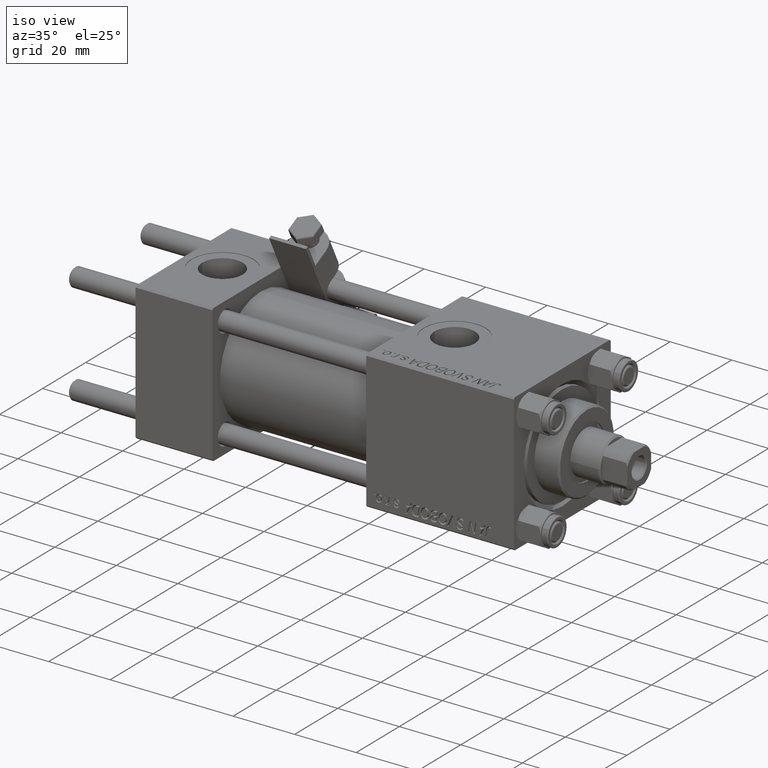
[diagram: clean part render]
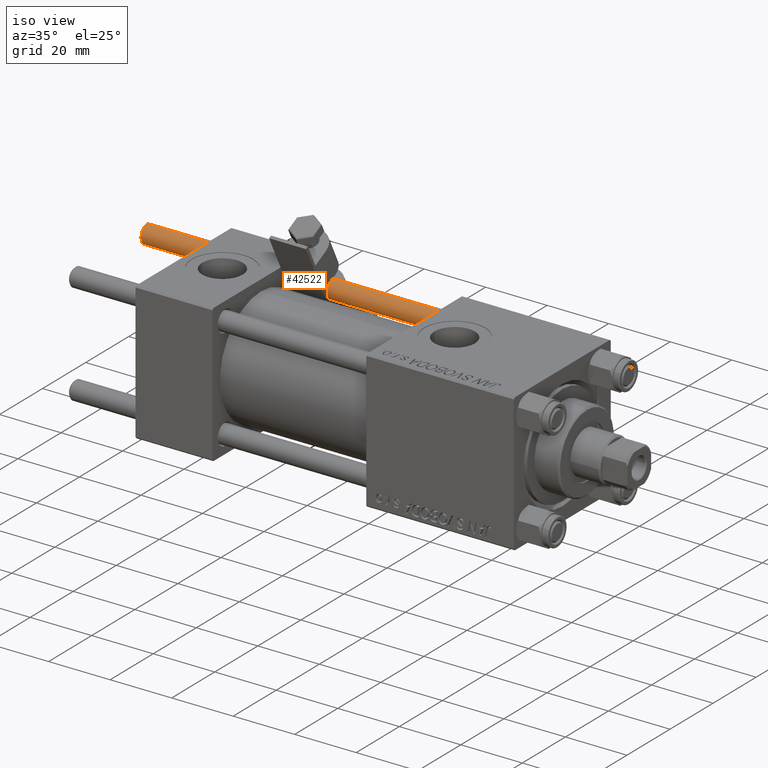
[diagram: same view with one face highlighted and labeled with its STEP entity id]
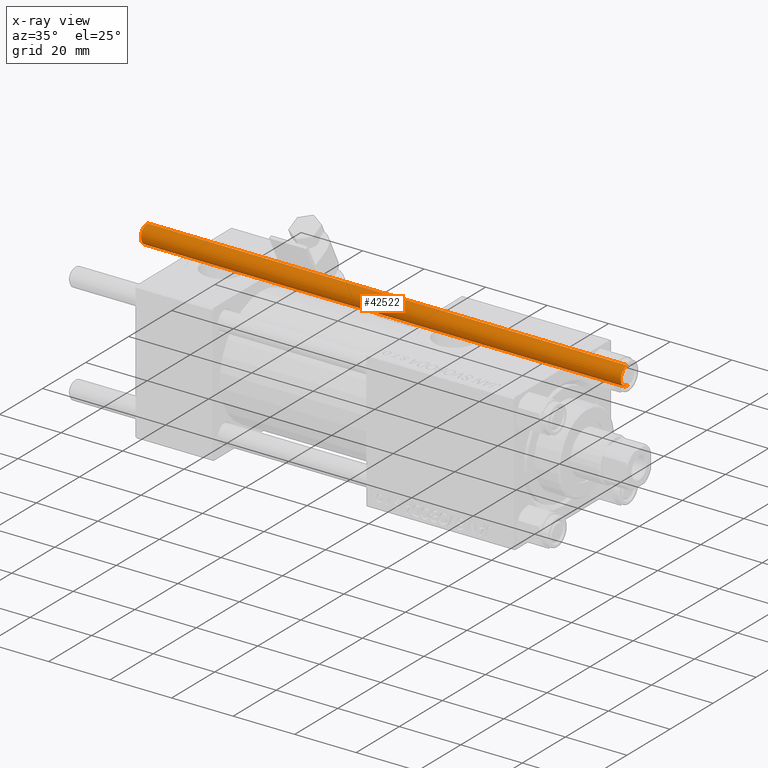
[diagram: x-ray of the same camera — body ghosted, the highlighted face saturated]
A machine part, iso view. The second image highlights one B-rep face of the part: STEP entity #42522.
The next image is the same camera in x-ray: the body ghosted, the highlighted face saturated — about 0% of this face is hidden behind the body in this view.
In plain terms, the highlighted cylindrical surface (edge-blend (fillet) strip) has radius 3 mm, axis along (-1, -0, -0).
Its self-contained STEP definition (entity closure, byte-faithful):
#949 = CARTESIAN_POINT ( 'NONE',  ( 3.000000000000000444, 3.673940397442060361E-16, 156.5000000000000284 ) ) ;
#1416 = CIRCLE ( 'NONE', #10446, 3.000000000000000444 ) ;
#5304 = EDGE_CURVE ( 'NONE', #40745, #6461, #48938, .T. ) ;
#6177 = CARTESIAN_POINT ( 'NONE',  ( -3.000000000000000444, 0.000000000000000000, 0.4999999999999726885 ) ) ;
#6461 = VERTEX_POINT ( 'NONE', #6177 ) ;
#7711 = DIRECTION ( 'NONE',  ( -1.000000000000000000, 0.000000000000000000, 0.000000000000000000 ) ) ;
#7826 = ORIENTED_EDGE ( 'NONE', *, *, #24322, .T. ) ;
#10446 = AXIS2_PLACEMENT_3D ( 'NONE', #23934, #36292, #31686 ) ;
#13989 = LINE ( 'NONE', #21734, #46801 ) ;
#14735 = CARTESIAN_POINT ( 'NONE',  ( 0.000000000000000000, 0.000000000000000000, 156.5000000000000284 ) ) ;
#14952 = CYLINDRICAL_SURFACE ( 'NONE', #50137, 3.000000000000000444 ) ;
#15214 = DIRECTION ( 'NONE',  ( -0.000000000000000000, -0.000000000000000000, -1.000000000000000000 ) ) ;
#17265 = DIRECTION ( 'NONE',  ( -0.000000000000000000, -0.000000000000000000, -1.000000000000000000 ) ) ;
#17855 = DIRECTION ( 'NONE',  ( -0.000000000000000000, -0.000000000000000000, -1.000000000000000000 ) ) ;
#19637 = EDGE_LOOP ( 'NONE', ( #40348, #7826, #30996, #22307 ) ) ;
#21696 = VERTEX_POINT ( 'NONE', #949 ) ;
#21734 = CARTESIAN_POINT ( 'NONE',  ( 3.000000000000000444, 3.673940397442060361E-16, 157.0000000000000000 ) ) ;
#22307 = ORIENTED_EDGE ( 'NONE', *, *, #34697, .T. ) ;
#23934 = CARTESIAN_POINT ( 'NONE',  ( 0.000000000000000000, 0.000000000000000000, 0.4999999999999726885 ) ) ;
#24322 = EDGE_CURVE ( 'NONE', #21696, #40745, #27516, .T. ) ;
#27516 = CIRCLE ( 'NONE', #30790, 3.000000000000000444 ) ;
#29384 = CARTESIAN_POINT ( 'NONE',  ( -3.000000000000000444, 0.000000000000000000, 157.0000000000000000 ) ) ;
#30463 = DIRECTION ( 'NONE',  ( 0.000000000000000000, 0.000000000000000000, -1.000000000000000000 ) ) ;
#30790 = AXIS2_PLACEMENT_3D ( 'NONE', #14735, #30463, #50264 ) ;
#30996 = ORIENTED_EDGE ( 'NONE', *, *, #5304, .T. ) ;
#31686 = DIRECTION ( 'NONE',  ( 1.000000000000000000, 0.000000000000000000, 0.000000000000000000 ) ) ;
#33543 = FACE_OUTER_BOUND ( 'NONE', #19637, .T. ) ;
#34211 = CARTESIAN_POINT ( 'NONE',  ( -3.000000000000000444, 0.000000000000000000, 156.5000000000000284 ) ) ;
#34697 = EDGE_CURVE ( 'NONE', #6461, #49903, #1416, .T. ) ;
#36292 = DIRECTION ( 'NONE',  ( -0.000000000000000000, -0.000000000000000000, 1.000000000000000000 ) ) ;
#40348 = ORIENTED_EDGE ( 'NONE', *, *, #41326, .F. ) ;
#40745 = VERTEX_POINT ( 'NONE', #34211 ) ;
#41326 = EDGE_CURVE ( 'NONE', #21696, #49903, #13989, .T. ) ;
#42522 = ADVANCED_FACE ( 'NONE', ( #33543 ), #14952, .T. ) ;
#46604 = CARTESIAN_POINT ( 'NONE',  ( 3.000000000000000444, 3.673940397442060361E-16, 0.4999999999999726885 ) ) ;
#46798 = VECTOR ( 'NONE', #17265, 1000.000000000000000 ) ;
#46801 = VECTOR ( 'NONE', #17855, 1000.000000000000000 ) ;
#48938 = LINE ( 'NONE', #29384, #46798 ) ;
#49903 = VERTEX_POINT ( 'NONE', #46604 ) ;
#50137 = AXIS2_PLACEMENT_3D ( 'NONE', #50483, #15214, #7711 ) ;
#50264 = DIRECTION ( 'NONE',  ( 1.000000000000000000, 0.000000000000000000, 0.000000000000000000 ) ) ;
#50483 = CARTESIAN_POINT ( 'NONE',  ( 0.000000000000000000, 0.000000000000000000, 157.0000000000000000 ) ) ;